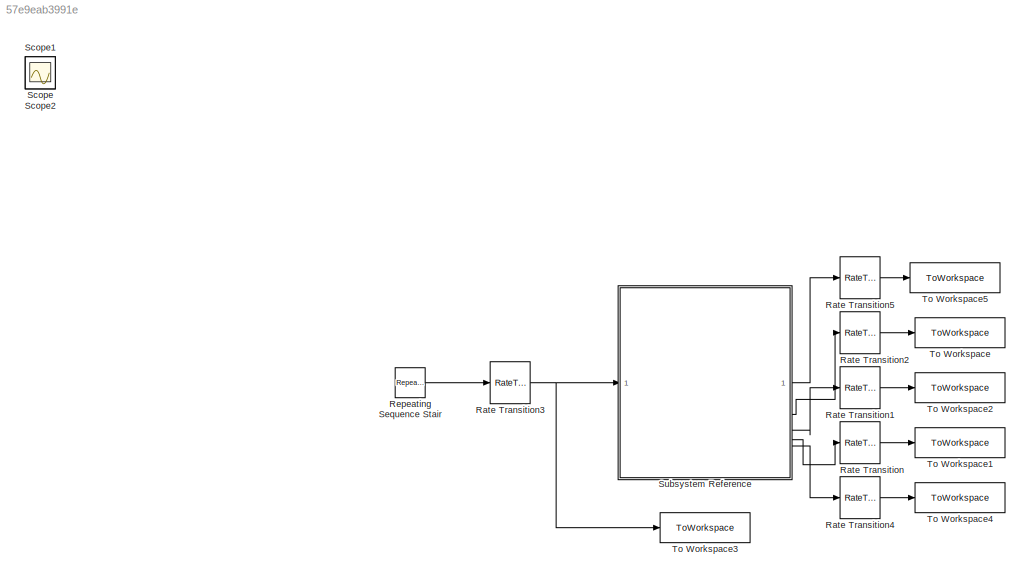
MODEL slx_57e9eab3991e
KIND model
CONFIG AbsTol = auto
CONFIG EnableMultiTasking = on
CONFIG FixedStep = auto
CONFIG MaxStep = auto
CONFIG MinStep = auto
CONFIG RelTol = 1e-3
CONFIG SampleTimeConstraint = Unconstrained
CONFIG SolverName = FixedStepAuto
CONFIG StartTime = 0.0
CONFIG StopTime = 32
BLOCK [RateTransition] Rate Transition
  OutPortSampleTime = 0.005
BLOCK [RateTransition] Rate Transition1
  OutPortSampleTime = 0.005
BLOCK [RateTransition] Rate Transition2
  OutPortSampleTime = 0.005
BLOCK [RateTransition] Rate Transition3
  OutPortSampleTime = 0.005
BLOCK [RateTransition] Rate Transition4
  OutPortSampleTime = 0.005
BLOCK [RateTransition] Rate Transition5
  OutPortSampleTime = 0.005
BLOCK [Reference] Repeating Sequence Stair  REF=simulink/Sources/Repeating
Sequence
Stair
  SourceBlock = simulink/Sources/Repeating\nSequence\nStair
  SourceType = Repeating Sequence Stair
BLOCK [Scope] Scope
  Floating = off
  IOType = viewer
  NumInputPorts = 1
  ScopeSpecificationString = Simulink.scopes.TimeScopeBlockCfg('CurrentConfiguration', extmgr.ConfigurationSet(extmgr.Configuration('Core','General UI',true),extmgr.Configuration('Core','Source UI',true),extmgr.Configuration('Sources','WiredSimulink',true),extmgr.Configuration('Visuals','Time Domain',true,'SerializedDisplays',{struct('MinYLimReal','-10.00000','MaxYLimReal','10.00000','YLabelReal','','MinYLimMag','0.00000','Ma...<+1326ch>
BLOCK [Scope] Scope1
  Floating = off
  IOType = viewer
  NumInputPorts = 1
  ScopeSpecificationString = Simulink.scopes.TimeScopeBlockCfg('CurrentConfiguration', extmgr.ConfigurationSet(extmgr.Configuration('Core','General UI',true),extmgr.Configuration('Core','Source UI',true),extmgr.Configuration('Sources','WiredSimulink',true,'DataLoggingVariableName','ScopeData1'),extmgr.Configuration('Visuals','Time Domain',true,'SerializedDisplays',{struct('MinYLimReal','-10.00000','MaxYLimReal','10.00000','YL...<+1365ch>
BLOCK [Scope] Scope2
  Floating = off
  IOType = viewer
  NumInputPorts = 1
  ScopeSpecificationString = Simulink.scopes.TimeScopeBlockCfg('CurrentConfiguration', extmgr.ConfigurationSet(extmgr.Configuration('Core','General UI',true),extmgr.Configuration('Core','Source UI',true),extmgr.Configuration('Sources','WiredSimulink',true,'DataLoggingVariableName','ScopeData2'),extmgr.Configuration('Visuals','Time Domain',true,'SerializedDisplays',{struct('MinYLimReal','-10.00000','MaxYLimReal','10.00000','YL...<+1421ch>
BLOCK [SubSystem] Subsystem Reference
  ReferencedSubsystem = pololu_37D_hardware_interface
  Ts = 0.005
  pwmFreq = 2000
BLOCK [ToWorkspace] To Workspace
  FixptAsFi = on
  MaxDataPoints = inf
  SampleTime = -1
  SaveFormat = Timeseries
  VariableName = position
BLOCK [ToWorkspace] To Workspace1
  FixptAsFi = on
  MaxDataPoints = inf
  SampleTime = -1
  SaveFormat = Timeseries
  VariableName = speed
BLOCK [ToWorkspace] To Workspace2
  FixptAsFi = on
  MaxDataPoints = inf
  SampleTime = -1
  SaveFormat = Timeseries
  VariableName = current
BLOCK [ToWorkspace] To Workspace3
  FixptAsFi = on
  MaxDataPoints = inf
  SampleTime = -1
  SaveFormat = Timeseries
  VariableName = voltage
BLOCK [ToWorkspace] To Workspace4
  FixptAsFi = on
  MaxDataPoints = inf
  SampleTime = -1
  SaveFormat = Timeseries
  VariableName = current_raw
BLOCK [ToWorkspace] To Workspace5
  FixptAsFi = on
  MaxDataPoints = inf
  SampleTime = -1
  SaveFormat = Timeseries
  VariableName = speed_mean
LINE Rate Transition1:1 -> To Workspace2:1
LINE Rate Transition2:1 -> To Workspace:1
NET Rate Transition3:1 -> Subsystem Reference:1, To Workspace3:1
LINE Rate Transition4:1 -> To Workspace4:1
LINE Rate Transition5:1 -> To Workspace5:1
LINE Rate Transition:1 -> To Workspace1:1
LINE Repeating Sequence Stair:1 -> Rate Transition3:1
LINE Subsystem Reference:1 -> Rate Transition5:1
LINE Subsystem Reference:2 -> Rate Transition2:1
LINE Subsystem Reference:3 -> Rate Transition1:1
LINE Subsystem Reference:4 -> Rate Transition:1
LINE Subsystem Reference:5 -> Rate Transition4:1
note: NET lines group one-source signal fan-out (src -> all destinations, sorted); 1:1 wires keep LINE
